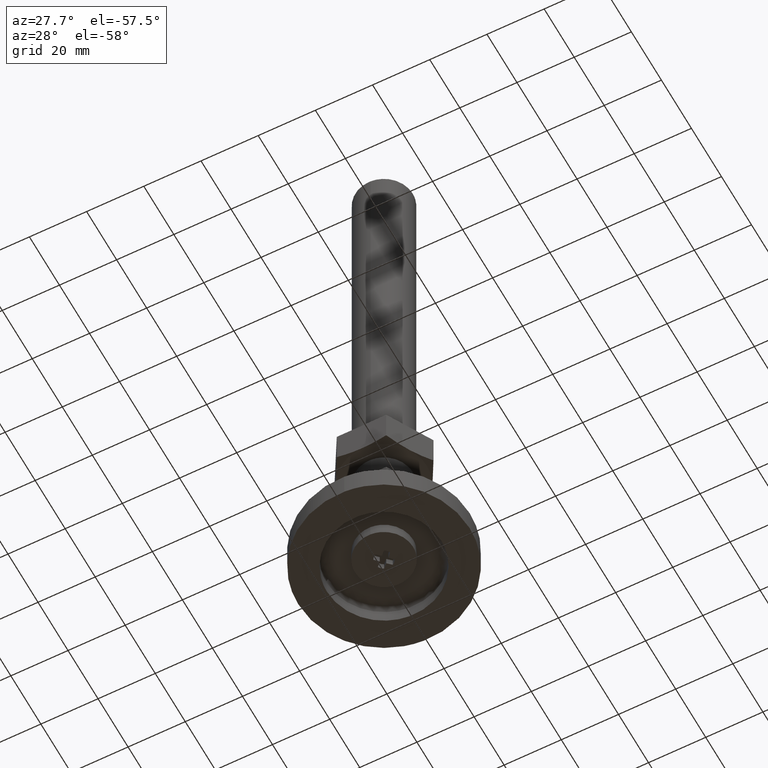
[diagram: clean part render]
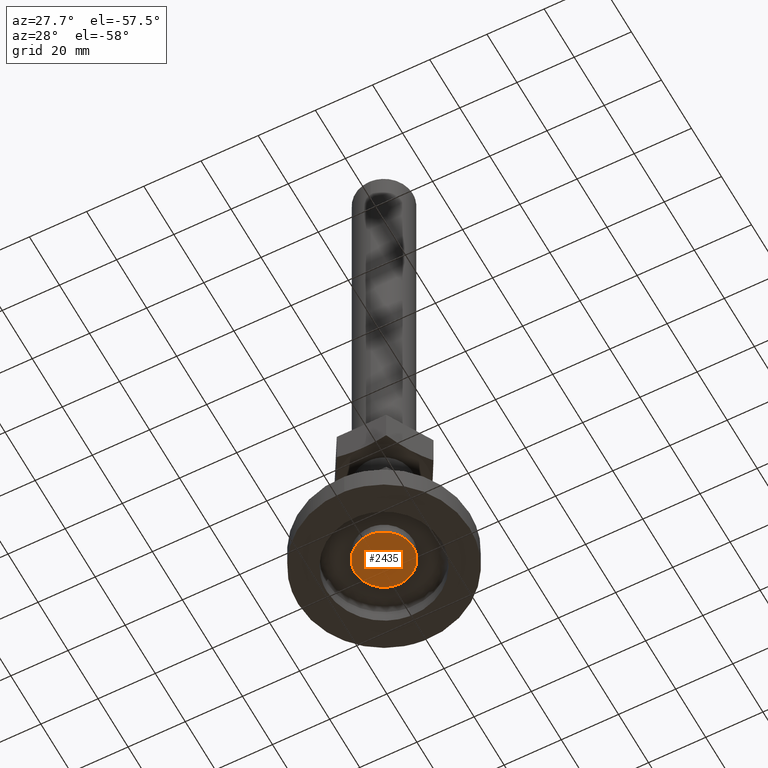
[diagram: same view with one face highlighted and labeled with its STEP entity id]
A machine part, auxiliary view. The second image highlights one B-rep face of the part: STEP entity #2435.
In plain terms, the highlighted face is a freeform B-spline surface patch.
Its self-contained STEP definition (entity closure, byte-faithful):
#1839=CARTESIAN_POINT('',(1.507457000000000,-1.425726E-014,3.800000000000000));
#1840=VERTEX_POINT('',#1839);
#1841=CARTESIAN_POINT('',(1.516942000000000,-0.031023000000019,3.800000000000000));
#1842=VERTEX_POINT('',#1841);
#1843=CARTESIAN_POINT('',(1.507457000000000,-1.425726E-014,3.800000000000000));
#1844=CARTESIAN_POINT('',(1.516942000000000,-0.031023000000019,3.800000000000000));
#1845=QUASI_UNIFORM_CURVE('',1,(#1843,#1844),.UNSPECIFIED.,.F.,.U.);
#1846=EDGE_CURVE('',#1840,#1842,#1845,.T.);
#1867=CARTESIAN_POINT('',(1.516942000000000,0.031022999999990,3.800000000000000));
#1868=VERTEX_POINT('',#1867);
#1869=CARTESIAN_POINT('',(1.516942000000000,0.031022999999990,3.800000000000000));
#1870=CARTESIAN_POINT('',(1.507457000000000,-1.425726E-014,3.800000000000000));
#1871=QUASI_UNIFORM_CURVE('',1,(#1869,#1870),.UNSPECIFIED.,.F.,.U.);
#1872=EDGE_CURVE('',#1868,#1840,#1871,.T.);
#1889=CARTESIAN_POINT('',(2.938048381164870,1.502621612361020,3.800000000000000));
#1890=VERTEX_POINT('',#1889);
#1891=CARTESIAN_POINT('',(2.938048381164870,1.502621612361020,3.800000000000000));
#1892=CARTESIAN_POINT('',(1.516942000000000,0.031022999999990,3.800000000000000));
#1893=QUASI_UNIFORM_CURVE('',1,(#1891,#1892),.UNSPECIFIED.,.F.,.U.);
#1894=EDGE_CURVE('',#1890,#1868,#1893,.T.);
#1920=CARTESIAN_POINT('',(1.502622000000000,2.938047999999965,3.800000000000000));
#1921=VERTEX_POINT('',#1920);
#1922=CARTESIAN_POINT('',(1.502622000000000,2.938047999999965,3.800000000000000));
#1923=CARTESIAN_POINT('',(2.452332777499695,2.452332392051385,3.800000000000000));
#1924=CARTESIAN_POINT('',(2.938048381164871,1.502621612361022,3.800000000000000));
#1932=(BOUNDED_CURVE()B_SPLINE_CURVE(2,(#1922,#1923,#1924),.UNSPECIFIED.,.F.,.U.)CURVE()GEOMETRIC_REPRESENTATION_ITEM()QUASI_UNIFORM_CURVE()RATIONAL_B_SPLINE_CURVE((1.0,0.951523619757787,1.0))REPRESENTATION_ITEM(''));
#1933=EDGE_CURVE('',#1921,#1890,#1932,.T.);
#1950=CARTESIAN_POINT('',(0.031023000000019,1.516942000000000,3.800000000000000));
#1951=VERTEX_POINT('',#1950);
#1952=CARTESIAN_POINT('',(0.031023000000019,1.516942000000000,3.800000000000000));
#1953=CARTESIAN_POINT('',(1.502622000000000,2.938047999999965,3.800000000000000));
#1954=QUASI_UNIFORM_CURVE('',1,(#1952,#1953),.UNSPECIFIED.,.F.,.U.);
#1955=EDGE_CURVE('',#1951,#1921,#1954,.T.);
#1972=CARTESIAN_POINT('',(0.0,1.507457000000000,3.800000000000000));
#1973=VERTEX_POINT('',#1972);
#1974=CARTESIAN_POINT('',(0.0,1.507457000000000,3.800000000000000));
#1975=CARTESIAN_POINT('',(0.031023000000019,1.516942000000000,3.800000000000000));
#1976=QUASI_UNIFORM_CURVE('',1,(#1974,#1975),.UNSPECIFIED.,.F.,.U.);
#1977=EDGE_CURVE('',#1973,#1951,#1976,.T.);
#1994=CARTESIAN_POINT('',(-0.031022999999990,1.516942000000000,3.800000000000000));
#1995=VERTEX_POINT('',#1994);
#1996=CARTESIAN_POINT('',(-0.031022999999990,1.516942000000000,3.800000000000000));
#1997=CARTESIAN_POINT('',(0.0,1.507457000000000,3.800000000000000));
#1998=QUASI_UNIFORM_CURVE('',1,(#1996,#1997),.UNSPECIFIED.,.F.,.U.);
#1999=EDGE_CURVE('',#1995,#1973,#1998,.T.);
#2016=CARTESIAN_POINT('',(-1.502621612361035,2.938048381164855,3.800000000000000));
#2017=VERTEX_POINT('',#2016);
#2018=CARTESIAN_POINT('',(-1.502621612361035,2.938048381164855,3.800000000000000));
#2019=CARTESIAN_POINT('',(-0.031022999999990,1.516942000000000,3.800000000000000));
#2020=QUASI_UNIFORM_CURVE('',1,(#2018,#2019),.UNSPECIFIED.,.F.,.U.);
#2021=EDGE_CURVE('',#2017,#1995,#2020,.T.);
#2047=CARTESIAN_POINT('',(-2.938048000000000,1.502621000000000,3.800000000000000));
#2048=VERTEX_POINT('',#2047);
#2049=CARTESIAN_POINT('',(-2.938048000000000,1.502621000000000,3.800000000000000));
#2050=CARTESIAN_POINT('',(-2.452332829796131,2.452332553621579,3.800000000000001));
#2051=CARTESIAN_POINT('',(-1.502621612361037,2.938048381164857,3.800000000000000));
#2059=(BOUNDED_CURVE()B_SPLINE_CURVE(2,(#2049,#2050,#2051),.UNSPECIFIED.,.F.,.U.)CURVE()GEOMETRIC_REPRESENTATION_ITEM()QUASI_UNIFORM_CURVE()RATIONAL_B_SPLINE_CURVE((1.0,0.951523578266855,1.0))REPRESENTATION_ITEM(''));
#2060=EDGE_CURVE('',#2048,#2017,#2059,.T.);
#2077=CARTESIAN_POINT('',(-1.516942000000000,0.031022999999990,3.800000000000000));
#2078=VERTEX_POINT('',#2077);
#2079=CARTESIAN_POINT('',(-1.516942000000000,0.031022999999990,3.800000000000000));
#2080=CARTESIAN_POINT('',(-2.938048000000000,1.502621000000000,3.800000000000000));
#2081=QUASI_UNIFORM_CURVE('',1,(#2079,#2080),.UNSPECIFIED.,.F.,.U.);
#2082=EDGE_CURVE('',#2078,#2048,#2081,.T.);
#2099=CARTESIAN_POINT('',(-1.507457000000000,-1.421085E-014,3.800000000000000));
#2100=VERTEX_POINT('',#2099);
#2101=CARTESIAN_POINT('',(-1.507457000000000,-1.421085E-014,3.800000000000000));
#2102=CARTESIAN_POINT('',(-1.516942000000000,0.031022999999990,3.800000000000000));
#2103=QUASI_UNIFORM_CURVE('',1,(#2101,#2102),.UNSPECIFIED.,.F.,.U.);
#2104=EDGE_CURVE('',#2100,#2078,#2103,.T.);
#2121=CARTESIAN_POINT('',(-1.516942000000000,-0.031023000000019,3.800000000000000));
#2122=VERTEX_POINT('',#2121);
#2123=CARTESIAN_POINT('',(-1.516942000000000,-0.031023000000019,3.800000000000000));
#2124=CARTESIAN_POINT('',(-1.507457000000000,-1.421085E-014,3.800000000000000));
#2125=QUASI_UNIFORM_CURVE('',1,(#2123,#2124),.UNSPECIFIED.,.F.,.U.);
#2126=EDGE_CURVE('',#2122,#2100,#2125,.T.);
#2143=CARTESIAN_POINT('',(-2.938048381164870,-1.502621612361045,3.800000000000000));
#2144=VERTEX_POINT('',#2143);
#2145=CARTESIAN_POINT('',(-2.938048381164870,-1.502621612361045,3.800000000000000));
#2146=CARTESIAN_POINT('',(-1.516942000000000,-0.031023000000019,3.800000000000000));
#2147=QUASI_UNIFORM_CURVE('',1,(#2145,#2146),.UNSPECIFIED.,.F.,.U.);
#2148=EDGE_CURVE('',#2144,#2122,#2147,.T.);
#2174=CARTESIAN_POINT('',(-1.502622000000000,-2.938049000000000,3.800000000000000));
#2175=VERTEX_POINT('',#2174);
#2176=CARTESIAN_POINT('',(-1.502622000000000,-2.938049000000000,3.800000000000000));
#2177=CARTESIAN_POINT('',(-2.452332663000540,-2.452332615929507,3.800000000000000));
#2178=CARTESIAN_POINT('',(-2.938048381164873,-1.502621612361047,3.800000000000000));
#2186=(BOUNDED_CURVE()B_SPLINE_CURVE(2,(#2176,#2177,#2178),.UNSPECIFIED.,.F.,.U.)CURVE()GEOMETRIC_REPRESENTATION_ITEM()QUASI_UNIFORM_CURVE()RATIONAL_B_SPLINE_CURVE((1.0,0.951523598537862,1.0))REPRESENTATION_ITEM(''));
#2187=EDGE_CURVE('',#2175,#2144,#2186,.T.);
#2204=CARTESIAN_POINT('',(-0.031022999999990,-1.516942000000045,3.800000000000000));
#2205=VERTEX_POINT('',#2204);
#2206=CARTESIAN_POINT('',(-0.031022999999990,-1.516942000000045,3.800000000000000));
#2207=CARTESIAN_POINT('',(-1.502622000000000,-2.938049000000000,3.800000000000000));
#2208=QUASI_UNIFORM_CURVE('',1,(#2206,#2207),.UNSPECIFIED.,.F.,.U.);
#2209=EDGE_CURVE('',#2205,#2175,#2208,.T.);
#2226=CARTESIAN_POINT('',(0.0,-1.507457000000060,3.800000000000000));
#2227=VERTEX_POINT('',#2226);
#2228=CARTESIAN_POINT('',(0.0,-1.507457000000060,3.800000000000000));
#2229=CARTESIAN_POINT('',(-0.031022999999990,-1.516942000000045,3.800000000000000));
#2230=QUASI_UNIFORM_CURVE('',1,(#2228,#2229),.UNSPECIFIED.,.F.,.U.);
#2231=EDGE_CURVE('',#2227,#2205,#2230,.T.);
#2248=CARTESIAN_POINT('',(0.031023000000019,-1.516942000000045,3.800000000000000));
#2249=VERTEX_POINT('',#2248);
#2250=CARTESIAN_POINT('',(0.031023000000019,-1.516942000000045,3.800000000000000));
#2251=CARTESIAN_POINT('',(0.0,-1.507457000000060,3.800000000000000));
#2252=QUASI_UNIFORM_CURVE('',1,(#2250,#2251),.UNSPECIFIED.,.F.,.U.);
#2253=EDGE_CURVE('',#2249,#2227,#2252,.T.);
#2270=CARTESIAN_POINT('',(1.502621612361030,-2.938048381164885,3.800000000000000));
#2271=VERTEX_POINT('',#2270);
#2272=CARTESIAN_POINT('',(1.502621612361030,-2.938048381164885,3.800000000000000));
#2273=CARTESIAN_POINT('',(0.031023000000019,-1.516942000000045,3.800000000000000));
#2274=QUASI_UNIFORM_CURVE('',1,(#2272,#2273),.UNSPECIFIED.,.F.,.U.);
#2275=EDGE_CURVE('',#2271,#2249,#2274,.T.);
#2301=CARTESIAN_POINT('',(2.938048381164870,-1.502621612361045,3.800000000000000));
#2302=VERTEX_POINT('',#2301);
#2303=CARTESIAN_POINT('',(2.938048381164873,-1.502621612361047,3.800000000000000));
#2304=CARTESIAN_POINT('',(2.452332647072768,-2.452332647072784,3.800000000000000));
#2305=CARTESIAN_POINT('',(1.502621612361031,-2.938048381164888,3.800000000000000));
#2313=(BOUNDED_CURVE()B_SPLINE_CURVE(2,(#2303,#2304,#2305),.UNSPECIFIED.,.F.,.U.)CURVE()GEOMETRIC_REPRESENTATION_ITEM()QUASI_UNIFORM_CURVE()RATIONAL_B_SPLINE_CURVE((1.0,0.951523595585997,1.0))REPRESENTATION_ITEM(''));
#2314=EDGE_CURVE('',#2302,#2271,#2313,.T.);
#2331=CARTESIAN_POINT('',(1.516942000000000,-0.031023000000019,3.800000000000000));
#2332=CARTESIAN_POINT('',(2.938048381164870,-1.502621612361045,3.800000000000000));
#2333=QUASI_UNIFORM_CURVE('',1,(#2331,#2332),.UNSPECIFIED.,.F.,.U.);
#2334=EDGE_CURVE('',#1842,#2302,#2333,.T.);
#2342=CARTESIAN_POINT('',(-11.163984960654661,11.163734990626169,3.800000000000000));
#2343=CARTESIAN_POINT('',(11.163985505143090,11.163734990626169,3.800000000000000));
#2344=CARTESIAN_POINT('',(-11.163984960654661,-11.163734809130020,3.800000000000000));
#2345=CARTESIAN_POINT('',(11.163985505143090,-11.163734809130020,3.800000000000000));
#2346=B_SPLINE_SURFACE_WITH_KNOTS('',1,1,((#2342,#2344),(#2343,#2345)),.UNSPECIFIED.,.F.,.F.,.U.,(2,2),(2,2),(0.0,22.327970465797751),(0.0,22.327469799756191),.UNSPECIFIED.);
#2347=CARTESIAN_POINT('',(-10.150000000000000,0.0,3.800000000000000));
#2348=VERTEX_POINT('',#2347);
#2349=CARTESIAN_POINT('',(-0.619642676494623,10.131068203968750,3.800000000000000));
#2350=VERTEX_POINT('',#2349);
#2351=CARTESIAN_POINT('',(-10.150000000000000,0.0,3.800000000000000));
#2352=CARTESIAN_POINT('',(-10.149999999999999,9.548166578889013,3.799999999999999));
#2353=CARTESIAN_POINT('',(-0.619642676494623,10.131068203968747,3.800000000000000));
#2361=(BOUNDED_CURVE()B_SPLINE_CURVE(2,(#2351,#2352,#2353),.UNSPECIFIED.,.F.,.U.)B_SPLINE_CURVE_WITH_KNOTS((3,3),(0.0,0.239332962238293),.UNSPECIFIED.)CURVE()GEOMETRIC_REPRESENTATION_ITEM()RATIONAL_B_SPLINE_CURVE((1.0,0.719603993287472,0.976072041665324))REPRESENTATION_ITEM(''));
#2362=EDGE_CURVE('',#2348,#2350,#2361,.T.);
#2363=ORIENTED_EDGE('',*,*,#2362,.T.);
#2364=CARTESIAN_POINT('',(10.150000000000000,0.0,3.800000000000000));
#2365=VERTEX_POINT('',#2364);
#2366=CARTESIAN_POINT('',(-0.619642676494623,10.131068203968747,3.800000000000000));
#2367=CARTESIAN_POINT('',(-0.310110547588892,10.149999999999995,3.800000000000000));
#2368=CARTESIAN_POINT('',(0.0,10.150000000000000,3.800000000000000));
#2369=CARTESIAN_POINT('',(10.149999999999999,10.149999999999999,3.800000000000000));
#2370=CARTESIAN_POINT('',(10.150000000000000,0.0,3.800000000000000));
#2378=(BOUNDED_CURVE()B_SPLINE_CURVE(2,(#2366,#2367,#2368,#2369,#2370),.UNSPECIFIED.,.F.,.U.)B_SPLINE_CURVE_WITH_KNOTS((3,2,3),(0.239332962238293,0.250000000000000,0.500000000000000),.UNSPECIFIED.)CURVE()GEOMETRIC_REPRESENTATION_ITEM()RATIONAL_B_SPLINE_CURVE((0.976072041665324,0.987502787899075,1.0,0.707106781186548,1.0))REPRESENTATION_ITEM(''));
#2379=EDGE_CURVE('',#2350,#2365,#2378,.T.);
#2380=ORIENTED_EDGE('',*,*,#2379,.T.);
#2381=CARTESIAN_POINT('',(0.619642676494624,-10.131068203968750,3.800000000000000));
#2382=VERTEX_POINT('',#2381);
#2383=CARTESIAN_POINT('',(10.150000000000000,0.0,3.800000000000000));
#2384=CARTESIAN_POINT('',(10.149999999999999,-9.548166578889013,3.799999999999999));
#2385=CARTESIAN_POINT('',(0.619642676494623,-10.131068203968747,3.800000000000000));
#2393=(BOUNDED_CURVE()B_SPLINE_CURVE(2,(#2383,#2384,#2385),.UNSPECIFIED.,.F.,.U.)B_SPLINE_CURVE_WITH_KNOTS((3,3),(0.500000000000000,0.739332962238292),.UNSPECIFIED.)CURVE()GEOMETRIC_REPRESENTATION_ITEM()RATIONAL_B_SPLINE_CURVE((1.0,0.719603993287472,0.976072041665324))REPRESENTATION_ITEM(''));
#2394=EDGE_CURVE('',#2365,#2382,#2393,.T.);
#2395=ORIENTED_EDGE('',*,*,#2394,.T.);
#2396=CARTESIAN_POINT('',(0.619642676494623,-10.131068203968747,3.800000000000000));
#2397=CARTESIAN_POINT('',(0.310110547588892,-10.149999999999995,3.800000000000000));
#2398=CARTESIAN_POINT('',(0.0,-10.150000000000000,3.800000000000000));
#2399=CARTESIAN_POINT('',(-10.149999999999999,-10.149999999999999,3.800000000000000));
#2400=CARTESIAN_POINT('',(-10.150000000000000,0.0,3.800000000000000));
#2408=(BOUNDED_CURVE()B_SPLINE_CURVE(2,(#2396,#2397,#2398,#2399,#2400),.UNSPECIFIED.,.F.,.U.)B_SPLINE_CURVE_WITH_KNOTS((3,2,3),(0.739332962238292,0.750000000000000,1.0),.UNSPECIFIED.)CURVE()GEOMETRIC_REPRESENTATION_ITEM()RATIONAL_B_SPLINE_CURVE((0.976072041665324,0.987502787899075,1.0,0.707106781186548,1.0))REPRESENTATION_ITEM(''));
#2409=EDGE_CURVE('',#2382,#2348,#2408,.T.);
#2410=ORIENTED_EDGE('',*,*,#2409,.T.);
#2411=EDGE_LOOP('',(#2363,#2380,#2395,#2410));
#2412=FACE_OUTER_BOUND('',#2411,.T.);
#2413=ORIENTED_EDGE('',*,*,#2334,.F.);
#2414=ORIENTED_EDGE('',*,*,#1846,.F.);
#2415=ORIENTED_EDGE('',*,*,#1872,.F.);
#2416=ORIENTED_EDGE('',*,*,#1894,.F.);
#2417=ORIENTED_EDGE('',*,*,#1933,.F.);
#2418=ORIENTED_EDGE('',*,*,#1955,.F.);
#2419=ORIENTED_EDGE('',*,*,#1977,.F.);
#2420=ORIENTED_EDGE('',*,*,#1999,.F.);
#2421=ORIENTED_EDGE('',*,*,#2021,.F.);
#2422=ORIENTED_EDGE('',*,*,#2060,.F.);
#2423=ORIENTED_EDGE('',*,*,#2082,.F.);
#2424=ORIENTED_EDGE('',*,*,#2104,.F.);
#2425=ORIENTED_EDGE('',*,*,#2126,.F.);
#2426=ORIENTED_EDGE('',*,*,#2148,.F.);
#2427=ORIENTED_EDGE('',*,*,#2187,.F.);
#2428=ORIENTED_EDGE('',*,*,#2209,.F.);
#2429=ORIENTED_EDGE('',*,*,#2231,.F.);
#2430=ORIENTED_EDGE('',*,*,#2253,.F.);
#2431=ORIENTED_EDGE('',*,*,#2275,.F.);
#2432=ORIENTED_EDGE('',*,*,#2314,.F.);
#2433=EDGE_LOOP('',(#2413,#2414,#2415,#2416,#2417,#2418,#2419,#2420,#2421,#2422,#2423,#2424,#2425,#2426,#2427,#2428,#2429,#2430,#2431,#2432));
#2434=FACE_BOUND('',#2433,.T.);
#2435=ADVANCED_FACE('',(#2412,#2434),#2346,.T.);